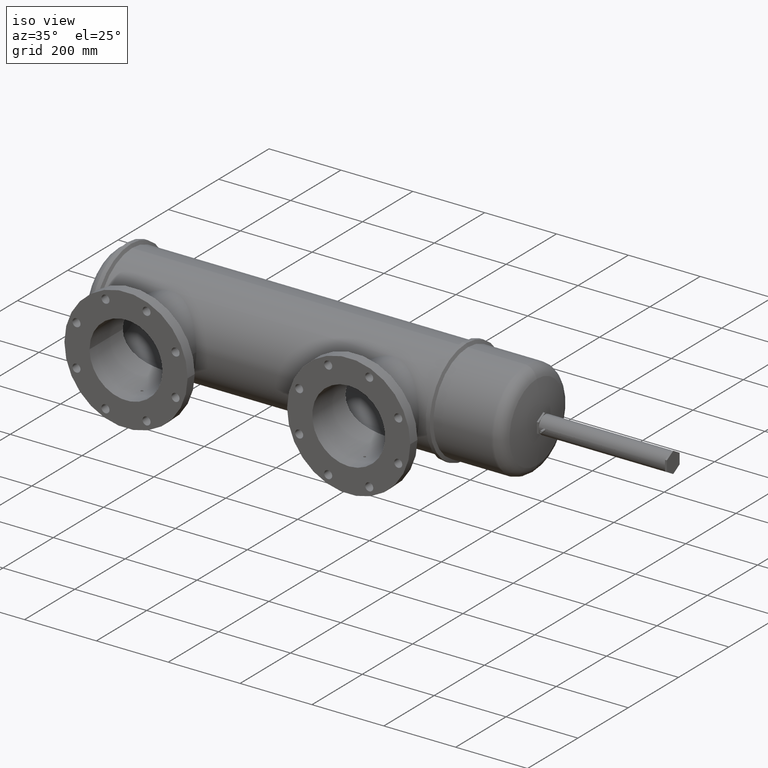
[diagram: clean part render]
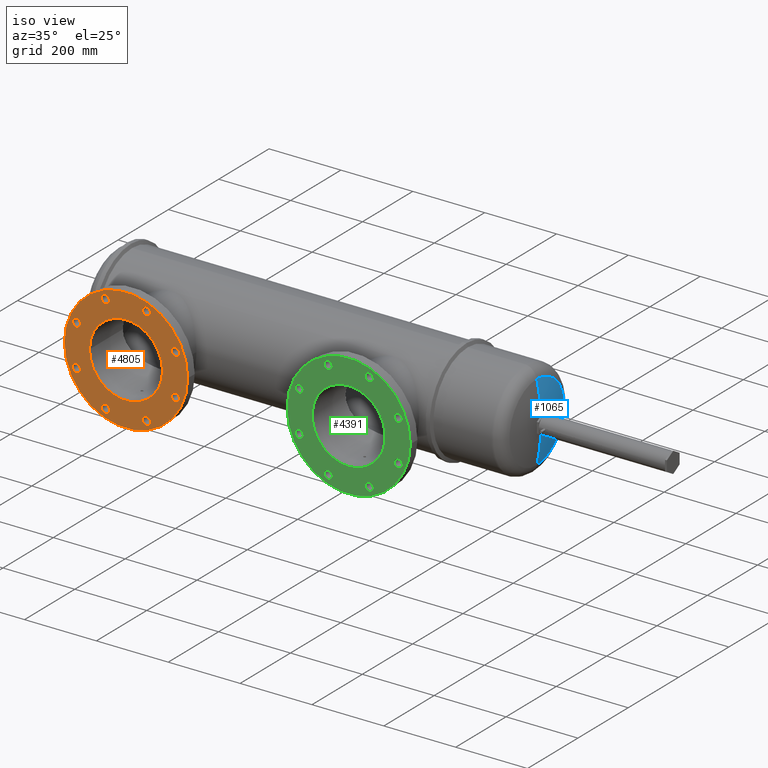
[diagram: same view with three faces highlighted in distinct colors, each labeled with its STEP entity id]
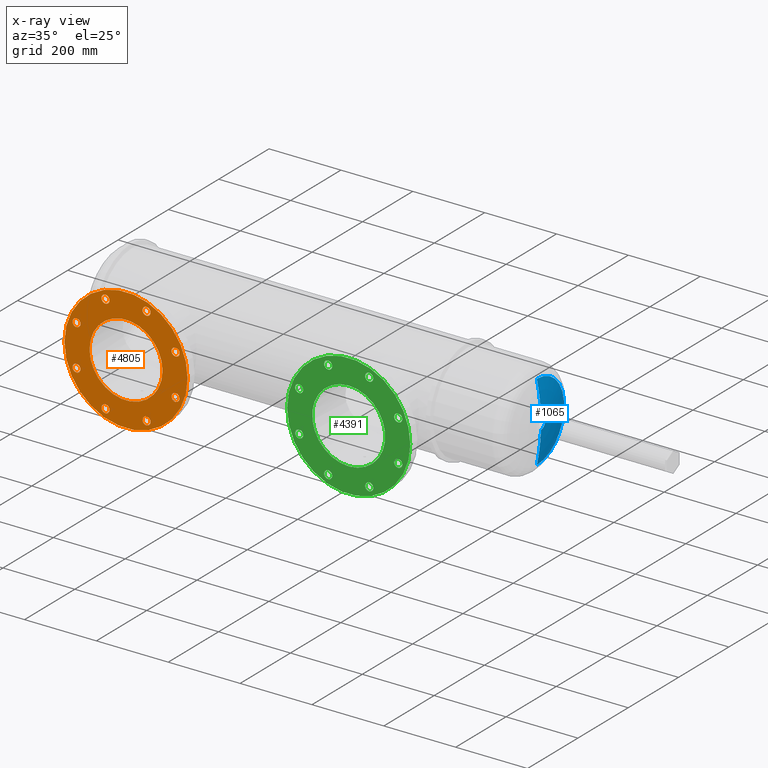
[diagram: x-ray of the same camera — body ghosted, the three highlighted faces saturated]
A machine part, iso view with three faces highlighted in distinct colors.
The next image is the same camera in x-ray (body ghosted, the three faces saturated) — at least one of them is partly hidden behind the body in this view.
Their STEP definitions:

[orange] entity #4805 — the highlighted planar face has unit normal (-0, 1, 0).
#26 = CARTESIAN_POINT ( 'NONE',  ( 14.35933425157177700, -10.38000000000000100, -2.248265165144798700 ) ) ;
#27 = EDGE_CURVE ( 'NONE', #4253, #6706, #7065, .T. ) ;
#29 = DIRECTION ( 'NONE',  ( 1.000000000000000000, 0.0000000000000000000, 0.0000000000000000000 ) ) ;
#50 = ORIENTED_EDGE ( 'NONE', *, *, #7110, .F. ) ;
#122 = EDGE_LOOP ( 'NONE', ( #745, #50 ) ) ;
#171 = CARTESIAN_POINT ( 'NONE',  ( 8.931541998067741500, -10.38000000000000300, 0.0000000000000000000 ) ) ;
#203 = ORIENTED_EDGE ( 'NONE', *, *, #938, .F. ) ;
#219 = CARTESIAN_POINT ( 'NONE',  ( 11.61980716321296500, -10.38000000000000100, -5.427792253503806600 ) ) ;
#318 = ORIENTED_EDGE ( 'NONE', *, *, #6193, .F. ) ;
#328 = CARTESIAN_POINT ( 'NONE',  ( 8.931541998067741500, -10.38000000000000300, 0.0000000000000000000 ) ) ;
#420 = EDGE_CURVE ( 'NONE', #6336, #6550, #3578, .T. ) ;
#431 = FACE_BOUND ( 'NONE', #7106, .T. ) ;
#464 = CARTESIAN_POINT ( 'NONE',  ( 11.61980716321261300, -10.38000000000000100, 5.427792253503824300 ) ) ;
#465 = CARTESIAN_POINT ( 'NONE',  ( 11.17980716321296300, -10.38000000000000100, -5.427792253503806600 ) ) ;
#474 = DIRECTION ( 'NONE',  ( 1.000000000000000000, 0.0000000000000000000, 0.0000000000000000000 ) ) ;
#573 = VERTEX_POINT ( 'NONE', #6069 ) ;
#626 = DIRECTION ( 'NONE',  ( 1.052735257674089800E-016, -1.000000000000000000, 0.0000000000000000000 ) ) ;
#654 = VERTEX_POINT ( 'NONE', #5763 ) ;
#718 = AXIS2_PLACEMENT_3D ( 'NONE', #4379, #3244, #2702 ) ;
#732 = EDGE_LOOP ( 'NONE', ( #4158, #4934 ) ) ;
#745 = ORIENTED_EDGE ( 'NONE', *, *, #4699, .F. ) ;
#784 = CIRCLE ( 'NONE', #718, 0.4400000000000007800 ) ;
#812 = CARTESIAN_POINT ( 'NONE',  ( 6.683276832923146700, -10.38000000000000300, -5.427792253503934500 ) ) ;
#814 = AXIS2_PLACEMENT_3D ( 'NONE', #6477, #5254, #5909 ) ;
#926 = ORIENTED_EDGE ( 'NONE', *, *, #6830, .F. ) ;
#933 = DIRECTION ( 'NONE',  ( 1.052735257674089800E-016, -1.000000000000000000, 0.0000000000000000000 ) ) ;
#938 = EDGE_CURVE ( 'NONE', #573, #6944, #1732, .T. ) ;
#955 = CARTESIAN_POINT ( 'NONE',  ( 6.683276832922873100, -10.38000000000000300, 5.427792253503696400 ) ) ;
#961 = DIRECTION ( 'NONE',  ( 1.000000000000000000, 0.0000000000000000000, 0.0000000000000000000 ) ) ;
#1004 = EDGE_CURVE ( 'NONE', #3675, #1775, #5416, .T. ) ;
#1190 = DIRECTION ( 'NONE',  ( 1.052735257674089800E-016, -1.000000000000000000, 0.0000000000000000000 ) ) ;
#1302 = CIRCLE ( 'NONE', #4673, 0.4400000000000007800 ) ;
#1303 = FACE_BOUND ( 'NONE', #5192, .T. ) ;
#1308 = EDGE_CURVE ( 'NONE', #6593, #3900, #6723, .T. ) ;
#1387 = CIRCLE ( 'NONE', #6325, 0.4400000000000029400 ) ;
#1415 = DIRECTION ( 'NONE',  ( 1.052735257674089800E-016, -1.000000000000000000, 0.0000000000000000000 ) ) ;
#1422 = AXIS2_PLACEMENT_3D ( 'NONE', #955, #2178, #3858 ) ;
#1536 = EDGE_LOOP ( 'NONE', ( #5371, #2394 ) ) ;
#1561 = FACE_BOUND ( 'NONE', #1536, .T. ) ;
#1611 = CARTESIAN_POINT ( 'NONE',  ( 11.17980716321261200, -10.38000000000000100, 5.427792253503824300 ) ) ;
#1644 = PLANE ( 'NONE',  #6978 ) ;
#1649 = AXIS2_PLACEMENT_3D ( 'NONE', #812, #4169, #4705 ) ;
#1654 = ORIENTED_EDGE ( 'NONE', *, *, #27, .T. ) ;
#1657 = DIRECTION ( 'NONE',  ( 1.000000000000000000, 0.0000000000000000000, 0.0000000000000000000 ) ) ;
#1686 = CARTESIAN_POINT ( 'NONE',  ( 14.79933425157163500, -10.38000000000000100, 2.248265165145017200 ) ) ;
#1692 = EDGE_LOOP ( 'NONE', ( #1654, #5687 ) ) ;
#1700 = VERTEX_POINT ( 'NONE', #5880 ) ;
#1701 = EDGE_LOOP ( 'NONE', ( #4978, #2014 ) ) ;
#1732 = CIRCLE ( 'NONE', #1882, 0.4400000000000023900 ) ;
#1743 = EDGE_CURVE ( 'NONE', #1775, #3675, #1302, .T. ) ;
#1775 = VERTEX_POINT ( 'NONE', #464 ) ;
#1823 = VERTEX_POINT ( 'NONE', #5443 ) ;
#1882 = AXIS2_PLACEMENT_3D ( 'NONE', #7076, #4912, #6011 ) ;
#1933 = EDGE_CURVE ( 'NONE', #1823, #1700, #2761, .T. ) ;
#1951 = ORIENTED_EDGE ( 'NONE', *, *, #4275, .F. ) ;
#2014 = ORIENTED_EDGE ( 'NONE', *, *, #1004, .F. ) ;
#2102 = CARTESIAN_POINT ( 'NONE',  ( 11.17980716321261200, -10.38000000000000100, 5.427792253503824300 ) ) ;
#2178 = DIRECTION ( 'NONE',  ( 1.052735257674089800E-016, -1.000000000000000000, 0.0000000000000000000 ) ) ;
#2197 = DIRECTION ( 'NONE',  ( 1.000000000000000000, 0.0000000000000000000, 0.0000000000000000000 ) ) ;
#2243 = DIRECTION ( 'NONE',  ( 1.052735257674089800E-016, -1.000000000000000000, 0.0000000000000000000 ) ) ;
#2250 = AXIS2_PLACEMENT_3D ( 'NONE', #2502, #6421, #5908 ) ;
#2286 = CARTESIAN_POINT ( 'NONE',  ( 6.683276832923146700, -10.38000000000000300, -5.427792253503934500 ) ) ;
#2332 = ORIENTED_EDGE ( 'NONE', *, *, #3084, .T. ) ;
#2340 = AXIS2_PLACEMENT_3D ( 'NONE', #1611, #3346, #6168 ) ;
#2381 = VERTEX_POINT ( 'NONE', #5229 ) ;
#2394 = ORIENTED_EDGE ( 'NONE', *, *, #2614, .F. ) ;
#2442 = CARTESIAN_POINT ( 'NONE',  ( 15.68154199806774300, -10.38000000000000300, 0.0000000000000000000 ) ) ;
#2474 = ORIENTED_EDGE ( 'NONE', *, *, #3983, .F. ) ;
#2502 = CARTESIAN_POINT ( 'NONE',  ( 14.35933425157163300, -10.38000000000000100, 2.248265165145017200 ) ) ;
#2551 = DIRECTION ( 'NONE',  ( -1.000000000000000000, 0.0000000000000000000, 0.0000000000000000000 ) ) ;
#2614 = EDGE_CURVE ( 'NONE', #4487, #3977, #5830, .T. ) ;
#2652 = AXIS2_PLACEMENT_3D ( 'NONE', #4751, #1415, #5320 ) ;
#2702 = DIRECTION ( 'NONE',  ( 1.000000000000000000, 0.0000000000000000000, 0.0000000000000000000 ) ) ;
#2761 = CIRCLE ( 'NONE', #4399, 0.4400000000000018900 ) ;
#2849 = EDGE_CURVE ( 'NONE', #6944, #573, #3457, .T. ) ;
#2874 = DIRECTION ( 'NONE',  ( 1.052735257674089800E-016, -1.000000000000000000, 0.0000000000000000000 ) ) ;
#2940 = FACE_BOUND ( 'NONE', #4854, .T. ) ;
#2976 = CARTESIAN_POINT ( 'NONE',  ( 10.73980716321261000, -10.38000000000000100, 5.427792253503824300 ) ) ;
#2982 = CARTESIAN_POINT ( 'NONE',  ( 3.063749744564030000, -10.38000000000000300, 2.248265165144706800 ) ) ;
#3010 = VERTEX_POINT ( 'NONE', #6460 ) ;
#3068 = CARTESIAN_POINT ( 'NONE',  ( 3.503749744564143700, -10.38000000000000300, -2.248265165145106900 ) ) ;
#3084 = EDGE_CURVE ( 'NONE', #3010, #6469, #7122, .T. ) ;
#3151 = ORIENTED_EDGE ( 'NONE', *, *, #2849, .F. ) ;
#3224 = EDGE_LOOP ( 'NONE', ( #2332, #3626 ) ) ;
#3244 = DIRECTION ( 'NONE',  ( 1.052735257674089800E-016, -1.000000000000000000, 0.0000000000000000000 ) ) ;
#3321 = VERTEX_POINT ( 'NONE', #5302 ) ;
#3333 = VERTEX_POINT ( 'NONE', #4709 ) ;
#3346 = DIRECTION ( 'NONE',  ( 1.052735257674089800E-016, -1.000000000000000000, 0.0000000000000000000 ) ) ;
#3390 = DIRECTION ( 'NONE',  ( 1.000000000000000000, 0.0000000000000000000, 0.0000000000000000000 ) ) ;
#3457 = CIRCLE ( 'NONE', #5197, 0.4400000000000023900 ) ;
#3567 = AXIS2_PLACEMENT_3D ( 'NONE', #7149, #3843, #474 ) ;
#3569 = FACE_OUTER_BOUND ( 'NONE', #1692, .T. ) ;
#3578 = CIRCLE ( 'NONE', #2250, 0.4400000000000007800 ) ;
#3626 = ORIENTED_EDGE ( 'NONE', *, *, #4423, .T. ) ;
#3656 = CARTESIAN_POINT ( 'NONE',  ( 3.063749744564144200, -10.38000000000000300, -2.248265165145106900 ) ) ;
#3675 = VERTEX_POINT ( 'NONE', #2976 ) ;
#3821 = EDGE_CURVE ( 'NONE', #6706, #4253, #5846, .T. ) ;
#3843 = DIRECTION ( 'NONE',  ( 1.052735257674089800E-016, -1.000000000000000000, 0.0000000000000000000 ) ) ;
#3858 = DIRECTION ( 'NONE',  ( 1.000000000000000000, 0.0000000000000000000, 0.0000000000000000000 ) ) ;
#3900 = VERTEX_POINT ( 'NONE', #4813 ) ;
#3932 = CARTESIAN_POINT ( 'NONE',  ( 12.93154199806774200, -10.38000000000000300, 4.898587196589414800E-016 ) ) ;
#3946 = EDGE_CURVE ( 'NONE', #6550, #6336, #4365, .T. ) ;
#3955 = DIRECTION ( 'NONE',  ( -1.000000000000000000, -1.052735257674089700E-016, 0.0000000000000000000 ) ) ;
#3977 = VERTEX_POINT ( 'NONE', #4858 ) ;
#3983 = EDGE_CURVE ( 'NONE', #1700, #1823, #6199, .T. ) ;
#4064 = CIRCLE ( 'NONE', #6644, 0.4400000000000007800 ) ;
#4107 = DIRECTION ( 'NONE',  ( 1.052735257674089800E-016, -1.000000000000000000, 0.0000000000000000000 ) ) ;
#4156 = EDGE_LOOP ( 'NONE', ( #2474, #5538 ) ) ;
#4158 = ORIENTED_EDGE ( 'NONE', *, *, #3946, .F. ) ;
#4169 = DIRECTION ( 'NONE',  ( 1.052735257674089800E-016, -1.000000000000000000, 0.0000000000000000000 ) ) ;
#4171 = AXIS2_PLACEMENT_3D ( 'NONE', #171, #4107, #5312 ) ;
#4253 = VERTEX_POINT ( 'NONE', #2442 ) ;
#4275 = EDGE_CURVE ( 'NONE', #2381, #654, #4454, .T. ) ;
#4365 = CIRCLE ( 'NONE', #4920, 0.4400000000000007800 ) ;
#4379 = CARTESIAN_POINT ( 'NONE',  ( 14.35933425157177700, -10.38000000000000100, -2.248265165144798700 ) ) ;
#4399 = AXIS2_PLACEMENT_3D ( 'NONE', #5094, #1190, #29 ) ;
#4412 = DIRECTION ( 'NONE',  ( 1.052735257674089800E-016, -1.000000000000000000, 0.0000000000000000000 ) ) ;
#4423 = EDGE_CURVE ( 'NONE', #6469, #3010, #7143, .T. ) ;
#4445 = FACE_BOUND ( 'NONE', #3224, .T. ) ;
#4454 = CIRCLE ( 'NONE', #1649, 0.4400000000000029400 ) ;
#4477 = DIRECTION ( 'NONE',  ( 1.000000000000000000, 0.0000000000000000000, 0.0000000000000000000 ) ) ;
#4487 = VERTEX_POINT ( 'NONE', #3656 ) ;
#4591 = DIRECTION ( 'NONE',  ( 1.052735257674089800E-016, -1.000000000000000000, 0.0000000000000000000 ) ) ;
#4673 = AXIS2_PLACEMENT_3D ( 'NONE', #2102, #4412, #4955 ) ;
#4699 = EDGE_CURVE ( 'NONE', #3333, #3321, #784, .T. ) ;
#4705 = DIRECTION ( 'NONE',  ( 1.000000000000000000, 0.0000000000000000000, 0.0000000000000000000 ) ) ;
#4709 = CARTESIAN_POINT ( 'NONE',  ( 14.79933425157177900, -10.38000000000000100, -2.248265165144798700 ) ) ;
#4751 = CARTESIAN_POINT ( 'NONE',  ( 11.17980716321296300, -10.38000000000000100, -5.427792253503806600 ) ) ;
#4796 = DIRECTION ( 'NONE',  ( -1.052735257674089800E-016, 1.000000000000000000, -0.0000000000000000000 ) ) ;
#4805 = ADVANCED_FACE ( 'NONE', ( #4445, #6886, #431, #1561, #2940, #1303, #5743, #6715, #5145, #3569 ), #1644, .F. ) ;
#4813 = CARTESIAN_POINT ( 'NONE',  ( 10.73980716321296200, -10.38000000000000100, -5.427792253503806600 ) ) ;
#4854 = EDGE_LOOP ( 'NONE', ( #1951, #318 ) ) ;
#4858 = CARTESIAN_POINT ( 'NONE',  ( 3.943749744564143600, -10.38000000000000300, -2.248265165145106900 ) ) ;
#4912 = DIRECTION ( 'NONE',  ( 1.052735257674089800E-016, -1.000000000000000000, 0.0000000000000000000 ) ) ;
#4920 = AXIS2_PLACEMENT_3D ( 'NONE', #7039, #933, #2197 ) ;
#4934 = ORIENTED_EDGE ( 'NONE', *, *, #420, .F. ) ;
#4955 = DIRECTION ( 'NONE',  ( 1.000000000000000000, 0.0000000000000000000, 0.0000000000000000000 ) ) ;
#4978 = ORIENTED_EDGE ( 'NONE', *, *, #1743, .F. ) ;
#5094 = CARTESIAN_POINT ( 'NONE',  ( 6.683276832922873100, -10.38000000000000300, 5.427792253503696400 ) ) ;
#5145 = FACE_BOUND ( 'NONE', #1701, .T. ) ;
#5192 = EDGE_LOOP ( 'NONE', ( #7102, #926 ) ) ;
#5197 = AXIS2_PLACEMENT_3D ( 'NONE', #5767, #4591, #6280 ) ;
#5212 = CIRCLE ( 'NONE', #5989, 0.4400000000000007800 ) ;
#5229 = CARTESIAN_POINT ( 'NONE',  ( 7.123276832923149700, -10.38000000000000300, -5.427792253503934500 ) ) ;
#5254 = DIRECTION ( 'NONE',  ( -1.052735257674089800E-016, 1.000000000000000000, -0.0000000000000000000 ) ) ;
#5302 = CARTESIAN_POINT ( 'NONE',  ( 13.91933425157177800, -10.38000000000000100, -2.248265165144798700 ) ) ;
#5312 = DIRECTION ( 'NONE',  ( 1.000000000000000000, 0.0000000000000000000, 0.0000000000000000000 ) ) ;
#5320 = DIRECTION ( 'NONE',  ( 1.000000000000000000, 0.0000000000000000000, 0.0000000000000000000 ) ) ;
#5333 = DIRECTION ( 'NONE',  ( 1.052735257674089800E-016, -1.000000000000000000, 0.0000000000000000000 ) ) ;
#5343 = AXIS2_PLACEMENT_3D ( 'NONE', #328, #4796, #2551 ) ;
#5371 = ORIENTED_EDGE ( 'NONE', *, *, #6148, .F. ) ;
#5376 = CARTESIAN_POINT ( 'NONE',  ( 2.181541998067740600, -10.38000000000000300, 8.266365894244635300E-016 ) ) ;
#5416 = CIRCLE ( 'NONE', #2340, 0.4400000000000007800 ) ;
#5443 = CARTESIAN_POINT ( 'NONE',  ( 6.243276832922871800, -10.38000000000000300, 5.427792253503696400 ) ) ;
#5538 = ORIENTED_EDGE ( 'NONE', *, *, #1933, .F. ) ;
#5687 = ORIENTED_EDGE ( 'NONE', *, *, #3821, .T. ) ;
#5743 = FACE_BOUND ( 'NONE', #122, .T. ) ;
#5763 = CARTESIAN_POINT ( 'NONE',  ( 6.243276832923143600, -10.38000000000000300, -5.427792253503934500 ) ) ;
#5767 = CARTESIAN_POINT ( 'NONE',  ( 3.503749744564032200, -10.38000000000000300, 2.248265165144706800 ) ) ;
#5830 = CIRCLE ( 'NONE', #5843, 0.4399999999999996700 ) ;
#5843 = AXIS2_PLACEMENT_3D ( 'NONE', #3068, #5333, #5934 ) ;
#5846 = CIRCLE ( 'NONE', #4171, 6.750000000000000900 ) ;
#5880 = CARTESIAN_POINT ( 'NONE',  ( 7.123276832922875300, -10.38000000000000300, 5.427792253503696400 ) ) ;
#5908 = DIRECTION ( 'NONE',  ( 1.000000000000000000, 0.0000000000000000000, 0.0000000000000000000 ) ) ;
#5909 = DIRECTION ( 'NONE',  ( -1.000000000000000000, 0.0000000000000000000, 0.0000000000000000000 ) ) ;
#5934 = DIRECTION ( 'NONE',  ( 1.000000000000000000, 0.0000000000000000000, 0.0000000000000000000 ) ) ;
#5947 = CARTESIAN_POINT ( 'NONE',  ( 13.91933425157163200, -10.38000000000000100, 2.248265165145017200 ) ) ;
#5989 = AXIS2_PLACEMENT_3D ( 'NONE', #465, #6609, #961 ) ;
#6011 = DIRECTION ( 'NONE',  ( 1.000000000000000000, 0.0000000000000000000, 0.0000000000000000000 ) ) ;
#6045 = AXIS2_PLACEMENT_3D ( 'NONE', #6769, #2243, #3390 ) ;
#6069 = CARTESIAN_POINT ( 'NONE',  ( 3.943749744564034800, -10.38000000000000300, 2.248265165144706800 ) ) ;
#6148 = EDGE_CURVE ( 'NONE', #3977, #4487, #6790, .T. ) ;
#6168 = DIRECTION ( 'NONE',  ( 1.000000000000000000, 0.0000000000000000000, 0.0000000000000000000 ) ) ;
#6176 = DIRECTION ( 'NONE',  ( -1.052735257674089700E-016, 1.000000000000000000, 0.0000000000000000000 ) ) ;
#6193 = EDGE_CURVE ( 'NONE', #654, #2381, #1387, .T. ) ;
#6199 = CIRCLE ( 'NONE', #1422, 0.4400000000000018900 ) ;
#6280 = DIRECTION ( 'NONE',  ( 1.000000000000000000, 0.0000000000000000000, 0.0000000000000000000 ) ) ;
#6325 = AXIS2_PLACEMENT_3D ( 'NONE', #2286, #2874, #4477 ) ;
#6336 = VERTEX_POINT ( 'NONE', #5947 ) ;
#6421 = DIRECTION ( 'NONE',  ( 1.052735257674089800E-016, -1.000000000000000000, 0.0000000000000000000 ) ) ;
#6460 = CARTESIAN_POINT ( 'NONE',  ( 4.931541998067741500, -10.38000000000000300, 0.0000000000000000000 ) ) ;
#6469 = VERTEX_POINT ( 'NONE', #3932 ) ;
#6477 = CARTESIAN_POINT ( 'NONE',  ( 8.931541998067741500, -10.38000000000000300, 0.0000000000000000000 ) ) ;
#6550 = VERTEX_POINT ( 'NONE', #1686 ) ;
#6593 = VERTEX_POINT ( 'NONE', #219 ) ;
#6609 = DIRECTION ( 'NONE',  ( 1.052735257674089800E-016, -1.000000000000000000, 0.0000000000000000000 ) ) ;
#6644 = AXIS2_PLACEMENT_3D ( 'NONE', #26, #626, #1657 ) ;
#6706 = VERTEX_POINT ( 'NONE', #5376 ) ;
#6715 = FACE_BOUND ( 'NONE', #732, .T. ) ;
#6723 = CIRCLE ( 'NONE', #2652, 0.4400000000000007800 ) ;
#6769 = CARTESIAN_POINT ( 'NONE',  ( 3.503749744564143700, -10.38000000000000300, -2.248265165145106900 ) ) ;
#6790 = CIRCLE ( 'NONE', #6045, 0.4399999999999996700 ) ;
#6830 = EDGE_CURVE ( 'NONE', #3900, #6593, #5212, .T. ) ;
#6886 = FACE_BOUND ( 'NONE', #4156, .T. ) ;
#6944 = VERTEX_POINT ( 'NONE', #2982 ) ;
#6978 = AXIS2_PLACEMENT_3D ( 'NONE', #7239, #6176, #3955 ) ;
#7039 = CARTESIAN_POINT ( 'NONE',  ( 14.35933425157163300, -10.38000000000000100, 2.248265165145017200 ) ) ;
#7065 = CIRCLE ( 'NONE', #3567, 6.750000000000000900 ) ;
#7076 = CARTESIAN_POINT ( 'NONE',  ( 3.503749744564032200, -10.38000000000000300, 2.248265165144706800 ) ) ;
#7102 = ORIENTED_EDGE ( 'NONE', *, *, #1308, .F. ) ;
#7106 = EDGE_LOOP ( 'NONE', ( #203, #3151 ) ) ;
#7110 = EDGE_CURVE ( 'NONE', #3321, #3333, #4064, .T. ) ;
#7122 = CIRCLE ( 'NONE', #5343, 4.000000000000000000 ) ;
#7143 = CIRCLE ( 'NONE', #814, 4.000000000000000000 ) ;
#7149 = CARTESIAN_POINT ( 'NONE',  ( 8.931541998067741500, -10.38000000000000300, 0.0000000000000000000 ) ) ;
#7239 = CARTESIAN_POINT ( 'NONE',  ( 1.222397793965202700E-031, -10.38000000000000300, 0.0000000000000000000 ) ) ;

[blue] entity #1065 — the highlighted toroidal blend (fillet) surface has major radius 0.0031 mm and minor (blend) radius 508 mm.
#512 = CIRCLE ( 'NONE', #1182, 4.275493248467186400 ) ;
#522 = DIRECTION ( 'NONE',  ( -0.0000000000000000000, 1.000000000000000000, 1.224646799147353200E-016 ) ) ;
#613 = CARTESIAN_POINT ( 'NONE',  ( 27.14060068722228200, -1.517830707259313900E-020, 0.0001239402828894083300 ) ) ;
#856 = ORIENTED_EDGE ( 'NONE', *, *, #889, .T. ) ;
#889 = EDGE_CURVE ( 'NONE', #5037, #2620, #6553, .T. ) ;
#1065 = ADVANCED_FACE ( 'NONE', ( #3922 ), #2249, .T. ) ;
#1182 = AXIS2_PLACEMENT_3D ( 'NONE', #1274, #1326, #1351 ) ;
#1274 = CARTESIAN_POINT ( 'NONE',  ( 46.67823722269480400, 0.0000000000000000000, 0.0000000000000000000 ) ) ;
#1283 = CARTESIAN_POINT ( 'NONE',  ( 27.14060068722228200, 0.0000000000000000000, -0.0001239402828894083300 ) ) ;
#1326 = DIRECTION ( 'NONE',  ( -1.000000000000000000, -0.0000000000000000000, -0.0000000000000000000 ) ) ;
#1351 = DIRECTION ( 'NONE',  ( 0.0000000000000000000, 0.0000000000000000000, 1.000000000000000000 ) ) ;
#1507 = ORIENTED_EDGE ( 'NONE', *, *, #2428, .F. ) ;
#1980 = AXIS2_PLACEMENT_3D ( 'NONE', #6027, #3188, #3741 ) ;
#2249 = TOROIDAL_SURFACE ( 'NONE', #4599, -0.0001239402828894083300, 20.00000359342382700 ) ;
#2403 = DIRECTION ( 'NONE',  ( 0.0000000000000000000, -1.000000000000000000, 0.0000000000000000000 ) ) ;
#2428 = EDGE_CURVE ( 'NONE', #7194, #6324, #512, .T. ) ;
#2506 = CARTESIAN_POINT ( 'NONE',  ( 47.12954200486083100, 3.025169900131166700E-016, -0.6649841238452376400 ) ) ;
#2561 = AXIS2_PLACEMENT_3D ( 'NONE', #1283, #2403, #2970 ) ;
#2620 = VERTEX_POINT ( 'NONE', #2506 ) ;
#2717 = CARTESIAN_POINT ( 'NONE',  ( 27.14060068722228200, 0.0000000000000000000, 0.0000000000000000000 ) ) ;
#2742 = DIRECTION ( 'NONE',  ( -1.000000000000000000, -0.0000000000000000000, -0.0000000000000000000 ) ) ;
#2743 = DIRECTION ( 'NONE',  ( 0.0000000000000000000, -1.224646799147353000E-016, 1.000000000000000000 ) ) ;
#2851 = EDGE_CURVE ( 'NONE', #5037, #7194, #3026, .T. ) ;
#2930 = CIRCLE ( 'NONE', #3276, 20.00000359342382700 ) ;
#2970 = DIRECTION ( 'NONE',  ( 0.0000000000000000000, 0.0000000000000000000, -1.000000000000000000 ) ) ;
#3026 = CIRCLE ( 'NONE', #2561, 20.00000359342382700 ) ;
#3188 = DIRECTION ( 'NONE',  ( -1.000000000000000000, -0.0000000000000000000, -0.0000000000000000000 ) ) ;
#3276 = AXIS2_PLACEMENT_3D ( 'NONE', #613, #522, #2743 ) ;
#3736 = CARTESIAN_POINT ( 'NONE',  ( 46.67823722269480400, 0.0000000000000000000, 4.275493248467197000 ) ) ;
#3741 = DIRECTION ( 'NONE',  ( 0.0000000000000000000, 0.0000000000000000000, 1.000000000000000000 ) ) ;
#3922 = FACE_OUTER_BOUND ( 'NONE', #5275, .T. ) ;
#4599 = AXIS2_PLACEMENT_3D ( 'NONE', #2717, #2742, #6143 ) ;
#4802 = ORIENTED_EDGE ( 'NONE', *, *, #2851, .F. ) ;
#4908 = CARTESIAN_POINT ( 'NONE',  ( 47.12954200486083100, 0.0000000000000000000, 0.6649841238452376400 ) ) ;
#5037 = VERTEX_POINT ( 'NONE', #4908 ) ;
#5115 = ORIENTED_EDGE ( 'NONE', *, *, #5504, .T. ) ;
#5275 = EDGE_LOOP ( 'NONE', ( #856, #5115, #1507, #4802 ) ) ;
#5472 = CARTESIAN_POINT ( 'NONE',  ( 46.67823722269480400, 5.235969121511473000E-016, -4.275493248467197000 ) ) ;
#5504 = EDGE_CURVE ( 'NONE', #2620, #6324, #2930, .T. ) ;
#6027 = CARTESIAN_POINT ( 'NONE',  ( 47.12954200486083100, 0.0000000000000000000, 0.0000000000000000000 ) ) ;
#6143 = DIRECTION ( 'NONE',  ( 0.0000000000000000000, 0.0000000000000000000, 1.000000000000000000 ) ) ;
#6324 = VERTEX_POINT ( 'NONE', #5472 ) ;
#6553 = CIRCLE ( 'NONE', #1980, 0.6649841238452376400 ) ;
#7194 = VERTEX_POINT ( 'NONE', #3736 ) ;

[green] entity #4391 — the highlighted planar face has unit normal (-0, 1, 0).
#22 = VERTEX_POINT ( 'NONE', #1575 ) ;
#55 = DIRECTION ( 'NONE',  ( 1.000000000000000000, 0.0000000000000000000, 0.0000000000000000000 ) ) ;
#98 = AXIS2_PLACEMENT_3D ( 'NONE', #2163, #6088, #2721 ) ;
#116 = ORIENTED_EDGE ( 'NONE', *, *, #5693, .F. ) ;
#145 = DIRECTION ( 'NONE',  ( 1.052735257674089800E-016, -1.000000000000000000, 0.0000000000000000000 ) ) ;
#198 = AXIS2_PLACEMENT_3D ( 'NONE', #1132, #502, #549 ) ;
#216 = VERTEX_POINT ( 'NONE', #4042 ) ;
#244 = CARTESIAN_POINT ( 'NONE',  ( 38.75933425157163000, -10.37999999999999700, 2.248265165145017200 ) ) ;
#260 = FACE_BOUND ( 'NONE', #1172, .T. ) ;
#291 = DIRECTION ( 'NONE',  ( 1.000000000000000000, 0.0000000000000000000, 0.0000000000000000000 ) ) ;
#329 = EDGE_LOOP ( 'NONE', ( #1040, #4053 ) ) ;
#372 = CARTESIAN_POINT ( 'NONE',  ( 26.58154199806774200, -10.37999999999999700, 8.266365894244638300E-016 ) ) ;
#391 = ORIENTED_EDGE ( 'NONE', *, *, #6224, .F. ) ;
#434 = AXIS2_PLACEMENT_3D ( 'NONE', #2529, #1374, #6450 ) ;
#458 = ORIENTED_EDGE ( 'NONE', *, *, #634, .T. ) ;
#463 = CARTESIAN_POINT ( 'NONE',  ( 33.33154199806774200, -10.38000000000000100, 4.000000000000000900 ) ) ;
#488 = VERTEX_POINT ( 'NONE', #4288 ) ;
#502 = DIRECTION ( 'NONE',  ( 1.052735257674089800E-016, -1.000000000000000000, 0.0000000000000000000 ) ) ;
#515 = CARTESIAN_POINT ( 'NONE',  ( 33.33154199806774200, -10.38000000000000100, 0.0000000000000000000 ) ) ;
#533 = AXIS2_PLACEMENT_3D ( 'NONE', #4465, #7208, #1076 ) ;
#549 = DIRECTION ( 'NONE',  ( 1.000000000000000000, 0.0000000000000000000, 0.0000000000000000000 ) ) ;
#601 = CARTESIAN_POINT ( 'NONE',  ( 38.75933425157177200, -10.37999999999999700, -2.248265165144798700 ) ) ;
#621 = AXIS2_PLACEMENT_3D ( 'NONE', #3816, #1597, #5502 ) ;
#627 = EDGE_CURVE ( 'NONE', #4147, #488, #5748, .T. ) ;
#634 = EDGE_CURVE ( 'NONE', #2644, #4582, #1739, .T. ) ;
#661 = CARTESIAN_POINT ( 'NONE',  ( 27.46374974456403000, -10.38000000000000100, 2.248265165144706800 ) ) ;
#710 = DIRECTION ( 'NONE',  ( 1.000000000000000000, 0.0000000000000000000, 0.0000000000000000000 ) ) ;
#757 = DIRECTION ( 'NONE',  ( 1.000000000000000000, 0.0000000000000000000, 0.0000000000000000000 ) ) ;
#810 = VERTEX_POINT ( 'NONE', #1997 ) ;
#825 = AXIS2_PLACEMENT_3D ( 'NONE', #244, #3566, #2425 ) ;
#847 = EDGE_CURVE ( 'NONE', #488, #4147, #2597, .T. ) ;
#892 = VERTEX_POINT ( 'NONE', #5406 ) ;
#893 = PLANE ( 'NONE',  #434 ) ;
#894 = CIRCLE ( 'NONE', #2047, 0.4400000000000029400 ) ;
#1032 = CIRCLE ( 'NONE', #1431, 0.4400000000000029400 ) ;
#1040 = ORIENTED_EDGE ( 'NONE', *, *, #6585, .F. ) ;
#1041 = AXIS2_PLACEMENT_3D ( 'NONE', #3976, #5104, #710 ) ;
#1052 = DIRECTION ( 'NONE',  ( 0.0000000000000000000, 0.0000000000000000000, 1.000000000000000000 ) ) ;
#1062 = CARTESIAN_POINT ( 'NONE',  ( 35.57980716321296200, -10.37999999999999700, -5.427792253503806600 ) ) ;
#1064 = VERTEX_POINT ( 'NONE', #3374 ) ;
#1074 = CARTESIAN_POINT ( 'NONE',  ( 33.33154199806774200, -10.38000000000000100, 0.0000000000000000000 ) ) ;
#1076 = DIRECTION ( 'NONE',  ( 1.000000000000000000, 0.0000000000000000000, 0.0000000000000000000 ) ) ;
#1132 = CARTESIAN_POINT ( 'NONE',  ( 35.57980716321296200, -10.37999999999999700, -5.427792253503806600 ) ) ;
#1137 = FACE_BOUND ( 'NONE', #4401, .T. ) ;
#1146 = ORIENTED_EDGE ( 'NONE', *, *, #3892, .F. ) ;
#1172 = EDGE_LOOP ( 'NONE', ( #4410, #5201 ) ) ;
#1174 = AXIS2_PLACEMENT_3D ( 'NONE', #6999, #5879, #2545 ) ;
#1177 = DIRECTION ( 'NONE',  ( 1.000000000000000000, 0.0000000000000000000, 0.0000000000000000000 ) ) ;
#1214 = FACE_OUTER_BOUND ( 'NONE', #1782, .T. ) ;
#1228 = EDGE_CURVE ( 'NONE', #22, #1064, #5144, .T. ) ;
#1316 = CIRCLE ( 'NONE', #6037, 4.000000000000000900 ) ;
#1367 = EDGE_LOOP ( 'NONE', ( #4762, #116 ) ) ;
#1374 = DIRECTION ( 'NONE',  ( -0.0000000000000000000, 1.000000000000000000, 0.0000000000000000000 ) ) ;
#1391 = AXIS2_PLACEMENT_3D ( 'NONE', #1826, #4129, #2352 ) ;
#1431 = AXIS2_PLACEMENT_3D ( 'NONE', #5367, #1556, #3694 ) ;
#1521 = EDGE_CURVE ( 'NONE', #2560, #810, #1808, .T. ) ;
#1556 = DIRECTION ( 'NONE',  ( 1.052735257674089800E-016, -1.000000000000000000, 0.0000000000000000000 ) ) ;
#1570 = CIRCLE ( 'NONE', #1174, 0.4400000000000029400 ) ;
#1575 = CARTESIAN_POINT ( 'NONE',  ( 38.31933425157163200, -10.37999999999999700, 2.248265165145017200 ) ) ;
#1597 = DIRECTION ( 'NONE',  ( 1.052735257674089800E-016, -1.000000000000000000, 0.0000000000000000000 ) ) ;
#1632 = CARTESIAN_POINT ( 'NONE',  ( 28.34374974456414600, -10.38000000000000100, -2.248265165145106900 ) ) ;
#1715 = CARTESIAN_POINT ( 'NONE',  ( 31.08327683292314700, -10.38000000000000100, -5.427792253503934500 ) ) ;
#1739 = CIRCLE ( 'NONE', #1391, 6.750000000000000000 ) ;
#1782 = EDGE_LOOP ( 'NONE', ( #5872, #458 ) ) ;
#1808 = CIRCLE ( 'NONE', #1041, 0.4400000000000029400 ) ;
#1825 = EDGE_CURVE ( 'NONE', #4574, #3445, #3204, .T. ) ;
#1826 = CARTESIAN_POINT ( 'NONE',  ( 33.33154199806774200, -10.37999999999999700, 0.0000000000000000000 ) ) ;
#1945 = CARTESIAN_POINT ( 'NONE',  ( 31.08327683292287300, -10.38000000000000100, 5.427792253503696400 ) ) ;
#1997 = CARTESIAN_POINT ( 'NONE',  ( 38.31933425157177500, -10.37999999999999700, -2.248265165144798700 ) ) ;
#2047 = AXIS2_PLACEMENT_3D ( 'NONE', #6021, #6571, #7177 ) ;
#2148 = CIRCLE ( 'NONE', #2891, 0.4400000000000029400 ) ;
#2150 = DIRECTION ( 'NONE',  ( 0.0000000000000000000, 0.0000000000000000000, 1.000000000000000000 ) ) ;
#2163 = CARTESIAN_POINT ( 'NONE',  ( 27.90374974456414100, -10.38000000000000100, -2.248265165145106900 ) ) ;
#2206 = ORIENTED_EDGE ( 'NONE', *, *, #5956, .F. ) ;
#2251 = CIRCLE ( 'NONE', #4588, 0.4400000000000029400 ) ;
#2262 = ORIENTED_EDGE ( 'NONE', *, *, #847, .F. ) ;
#2273 = CARTESIAN_POINT ( 'NONE',  ( 36.01980716321261200, -10.37999999999999700, 5.427792253503824300 ) ) ;
#2287 = AXIS2_PLACEMENT_3D ( 'NONE', #1062, #6113, #2720 ) ;
#2295 = ORIENTED_EDGE ( 'NONE', *, *, #4880, .F. ) ;
#2297 = CARTESIAN_POINT ( 'NONE',  ( 31.52327683292315200, -10.38000000000000100, -5.427792253503934500 ) ) ;
#2306 = EDGE_LOOP ( 'NONE', ( #7054, #2206 ) ) ;
#2352 = DIRECTION ( 'NONE',  ( 1.000000000000000000, 0.0000000000000000000, 0.0000000000000000000 ) ) ;
#2425 = DIRECTION ( 'NONE',  ( 1.000000000000000000, 0.0000000000000000000, 0.0000000000000000000 ) ) ;
#2446 = CARTESIAN_POINT ( 'NONE',  ( 38.75933425157163000, -10.37999999999999700, 2.248265165145017200 ) ) ;
#2529 = CARTESIAN_POINT ( 'NONE',  ( -5.405307221205019700E-015, -10.38000000000000100, 0.0000000000000000000 ) ) ;
#2545 = DIRECTION ( 'NONE',  ( 1.000000000000000000, 0.0000000000000000000, 0.0000000000000000000 ) ) ;
#2560 = VERTEX_POINT ( 'NONE', #5307 ) ;
#2568 = ORIENTED_EDGE ( 'NONE', *, *, #4513, .F. ) ;
#2597 = CIRCLE ( 'NONE', #3001, 0.4400000000000029400 ) ;
#2640 = CARTESIAN_POINT ( 'NONE',  ( 36.01980716321296700, -10.37999999999999700, -5.427792253503806600 ) ) ;
#2644 = VERTEX_POINT ( 'NONE', #372 ) ;
#2663 = CIRCLE ( 'NONE', #2287, 0.4400000000000029400 ) ;
#2681 = FACE_BOUND ( 'NONE', #1367, .T. ) ;
#2720 = DIRECTION ( 'NONE',  ( 1.000000000000000000, 0.0000000000000000000, 0.0000000000000000000 ) ) ;
#2721 = DIRECTION ( 'NONE',  ( 1.000000000000000000, 0.0000000000000000000, 0.0000000000000000000 ) ) ;
#2830 = CARTESIAN_POINT ( 'NONE',  ( 27.90374974456403500, -10.38000000000000100, 2.248265165144706800 ) ) ;
#2891 = AXIS2_PLACEMENT_3D ( 'NONE', #2830, #4529, #5096 ) ;
#2951 = FACE_BOUND ( 'NONE', #2306, .T. ) ;
#2968 = CARTESIAN_POINT ( 'NONE',  ( 31.08327683292287300, -10.38000000000000100, 5.427792253503696400 ) ) ;
#3001 = AXIS2_PLACEMENT_3D ( 'NONE', #1945, #6461, #3074 ) ;
#3022 = CARTESIAN_POINT ( 'NONE',  ( 30.64327683292314600, -10.38000000000000100, -5.427792253503934500 ) ) ;
#3044 = FACE_BOUND ( 'NONE', #329, .T. ) ;
#3074 = DIRECTION ( 'NONE',  ( 1.000000000000000000, 0.0000000000000000000, 0.0000000000000000000 ) ) ;
#3085 = CARTESIAN_POINT ( 'NONE',  ( 35.57980716321260700, -10.37999999999999700, 5.427792253503824300 ) ) ;
#3131 = AXIS2_PLACEMENT_3D ( 'NONE', #1074, #7137, #2150 ) ;
#3204 = CIRCLE ( 'NONE', #3131, 4.000000000000000900 ) ;
#3249 = DIRECTION ( 'NONE',  ( -0.0000000000000000000, 1.000000000000000000, -0.0000000000000000000 ) ) ;
#3296 = VERTEX_POINT ( 'NONE', #5250 ) ;
#3374 = CARTESIAN_POINT ( 'NONE',  ( 39.19933425157162800, -10.37999999999999700, 2.248265165145017200 ) ) ;
#3438 = ORIENTED_EDGE ( 'NONE', *, *, #3513, .F. ) ;
#3445 = VERTEX_POINT ( 'NONE', #463 ) ;
#3513 = EDGE_CURVE ( 'NONE', #5718, #5736, #894, .T. ) ;
#3536 = CARTESIAN_POINT ( 'NONE',  ( 33.33154199806774200, -10.38000000000000100, -4.000000000000000900 ) ) ;
#3544 = VERTEX_POINT ( 'NONE', #1632 ) ;
#3554 = AXIS2_PLACEMENT_3D ( 'NONE', #2446, #4095, #757 ) ;
#3566 = DIRECTION ( 'NONE',  ( 1.052735257674089800E-016, -1.000000000000000000, 0.0000000000000000000 ) ) ;
#3591 = EDGE_CURVE ( 'NONE', #3445, #4574, #1316, .T. ) ;
#3610 = AXIS2_PLACEMENT_3D ( 'NONE', #1715, #6152, #1177 ) ;
#3694 = DIRECTION ( 'NONE',  ( 1.000000000000000000, 0.0000000000000000000, 0.0000000000000000000 ) ) ;
#3789 = EDGE_LOOP ( 'NONE', ( #4323, #2262 ) ) ;
#3816 = CARTESIAN_POINT ( 'NONE',  ( 33.33154199806774200, -10.37999999999999700, 0.0000000000000000000 ) ) ;
#3892 = EDGE_CURVE ( 'NONE', #892, #3544, #6808, .T. ) ;
#3938 = DIRECTION ( 'NONE',  ( 1.052735257674089800E-016, -1.000000000000000000, 0.0000000000000000000 ) ) ;
#3976 = CARTESIAN_POINT ( 'NONE',  ( 38.75933425157177200, -10.37999999999999700, -2.248265165144798700 ) ) ;
#3986 = CIRCLE ( 'NONE', #198, 0.4400000000000029400 ) ;
#4042 = CARTESIAN_POINT ( 'NONE',  ( 35.13980716321295700, -10.37999999999999700, -5.427792253503806600 ) ) ;
#4048 = DIRECTION ( 'NONE',  ( 1.000000000000000000, 0.0000000000000000000, 0.0000000000000000000 ) ) ;
#4053 = ORIENTED_EDGE ( 'NONE', *, *, #1228, .F. ) ;
#4095 = DIRECTION ( 'NONE',  ( 1.052735257674089800E-016, -1.000000000000000000, 0.0000000000000000000 ) ) ;
#4103 = CARTESIAN_POINT ( 'NONE',  ( 40.08154199806774200, -10.37999999999999700, 0.0000000000000000000 ) ) ;
#4129 = DIRECTION ( 'NONE',  ( 1.052735257674089800E-016, -1.000000000000000000, 0.0000000000000000000 ) ) ;
#4147 = VERTEX_POINT ( 'NONE', #6235 ) ;
#4288 = CARTESIAN_POINT ( 'NONE',  ( 30.64327683292286900, -10.38000000000000100, 5.427792253503696400 ) ) ;
#4323 = ORIENTED_EDGE ( 'NONE', *, *, #627, .F. ) ;
#4391 = ADVANCED_FACE ( 'NONE', ( #4527, #4894, #2681, #6191, #2951, #260, #1137, #3044, #4713, #1214 ), #893, .F. ) ;
#4401 = EDGE_LOOP ( 'NONE', ( #5296, #391 ) ) ;
#4410 = ORIENTED_EDGE ( 'NONE', *, *, #6535, .F. ) ;
#4434 = EDGE_CURVE ( 'NONE', #3296, #5607, #1570, .T. ) ;
#4465 = CARTESIAN_POINT ( 'NONE',  ( 27.90374974456414100, -10.38000000000000100, -2.248265165145106900 ) ) ;
#4489 = ORIENTED_EDGE ( 'NONE', *, *, #1825, .T. ) ;
#4513 = EDGE_CURVE ( 'NONE', #5736, #5718, #2251, .T. ) ;
#4527 = FACE_BOUND ( 'NONE', #6934, .T. ) ;
#4529 = DIRECTION ( 'NONE',  ( 1.052735257674089800E-016, -1.000000000000000000, 0.0000000000000000000 ) ) ;
#4574 = VERTEX_POINT ( 'NONE', #3536 ) ;
#4582 = VERTEX_POINT ( 'NONE', #4103 ) ;
#4588 = AXIS2_PLACEMENT_3D ( 'NONE', #3085, #6975, #291 ) ;
#4614 = CIRCLE ( 'NONE', #3610, 0.4400000000000029400 ) ;
#4713 = FACE_BOUND ( 'NONE', #5986, .T. ) ;
#4744 = EDGE_CURVE ( 'NONE', #4582, #2644, #5836, .T. ) ;
#4754 = ORIENTED_EDGE ( 'NONE', *, *, #3591, .T. ) ;
#4762 = ORIENTED_EDGE ( 'NONE', *, *, #4434, .F. ) ;
#4843 = EDGE_CURVE ( 'NONE', #5712, #5191, #4614, .T. ) ;
#4880 = EDGE_CURVE ( 'NONE', #3544, #892, #6109, .T. ) ;
#4894 = FACE_BOUND ( 'NONE', #3789, .T. ) ;
#5096 = DIRECTION ( 'NONE',  ( 1.000000000000000000, 0.0000000000000000000, 0.0000000000000000000 ) ) ;
#5104 = DIRECTION ( 'NONE',  ( 1.052735257674089800E-016, -1.000000000000000000, 0.0000000000000000000 ) ) ;
#5109 = EDGE_LOOP ( 'NONE', ( #2295, #1146 ) ) ;
#5144 = CIRCLE ( 'NONE', #3554, 0.4399999999999985600 ) ;
#5191 = VERTEX_POINT ( 'NONE', #3022 ) ;
#5201 = ORIENTED_EDGE ( 'NONE', *, *, #6476, .F. ) ;
#5250 = CARTESIAN_POINT ( 'NONE',  ( 28.34374974456403600, -10.38000000000000100, 2.248265165144706800 ) ) ;
#5296 = ORIENTED_EDGE ( 'NONE', *, *, #1521, .F. ) ;
#5307 = CARTESIAN_POINT ( 'NONE',  ( 39.19933425157177700, -10.37999999999999700, -2.248265165144798700 ) ) ;
#5367 = CARTESIAN_POINT ( 'NONE',  ( 31.08327683292314700, -10.38000000000000100, -5.427792253503934500 ) ) ;
#5406 = CARTESIAN_POINT ( 'NONE',  ( 27.46374974456414000, -10.38000000000000100, -2.248265165145106900 ) ) ;
#5502 = DIRECTION ( 'NONE',  ( 1.000000000000000000, 0.0000000000000000000, 0.0000000000000000000 ) ) ;
#5562 = CIRCLE ( 'NONE', #825, 0.4399999999999985600 ) ;
#5607 = VERTEX_POINT ( 'NONE', #661 ) ;
#5693 = EDGE_CURVE ( 'NONE', #5607, #3296, #2148, .T. ) ;
#5712 = VERTEX_POINT ( 'NONE', #2297 ) ;
#5718 = VERTEX_POINT ( 'NONE', #6659 ) ;
#5736 = VERTEX_POINT ( 'NONE', #2273 ) ;
#5748 = CIRCLE ( 'NONE', #6991, 0.4400000000000029400 ) ;
#5836 = CIRCLE ( 'NONE', #621, 6.750000000000000000 ) ;
#5872 = ORIENTED_EDGE ( 'NONE', *, *, #4744, .T. ) ;
#5879 = DIRECTION ( 'NONE',  ( 1.052735257674089800E-016, -1.000000000000000000, 0.0000000000000000000 ) ) ;
#5956 = EDGE_CURVE ( 'NONE', #5191, #5712, #1032, .T. ) ;
#5986 = EDGE_LOOP ( 'NONE', ( #2568, #3438 ) ) ;
#6021 = CARTESIAN_POINT ( 'NONE',  ( 35.57980716321260700, -10.37999999999999700, 5.427792253503824300 ) ) ;
#6037 = AXIS2_PLACEMENT_3D ( 'NONE', #515, #3249, #1052 ) ;
#6088 = DIRECTION ( 'NONE',  ( 1.052735257674089800E-016, -1.000000000000000000, 0.0000000000000000000 ) ) ;
#6109 = CIRCLE ( 'NONE', #98, 0.4400000000000029400 ) ;
#6113 = DIRECTION ( 'NONE',  ( 1.052735257674089800E-016, -1.000000000000000000, 0.0000000000000000000 ) ) ;
#6152 = DIRECTION ( 'NONE',  ( 1.052735257674089800E-016, -1.000000000000000000, 0.0000000000000000000 ) ) ;
#6191 = FACE_BOUND ( 'NONE', #5109, .T. ) ;
#6224 = EDGE_CURVE ( 'NONE', #810, #2560, #6953, .T. ) ;
#6235 = CARTESIAN_POINT ( 'NONE',  ( 31.52327683292287500, -10.38000000000000100, 5.427792253503696400 ) ) ;
#6433 = AXIS2_PLACEMENT_3D ( 'NONE', #601, #3938, #55 ) ;
#6450 = DIRECTION ( 'NONE',  ( 0.0000000000000000000, 0.0000000000000000000, 1.000000000000000000 ) ) ;
#6461 = DIRECTION ( 'NONE',  ( 1.052735257674089800E-016, -1.000000000000000000, 0.0000000000000000000 ) ) ;
#6476 = EDGE_CURVE ( 'NONE', #216, #7015, #2663, .T. ) ;
#6535 = EDGE_CURVE ( 'NONE', #7015, #216, #3986, .T. ) ;
#6571 = DIRECTION ( 'NONE',  ( 1.052735257674089800E-016, -1.000000000000000000, 0.0000000000000000000 ) ) ;
#6585 = EDGE_CURVE ( 'NONE', #1064, #22, #5562, .T. ) ;
#6659 = CARTESIAN_POINT ( 'NONE',  ( 35.13980716321260900, -10.37999999999999700, 5.427792253503824300 ) ) ;
#6808 = CIRCLE ( 'NONE', #533, 0.4400000000000029400 ) ;
#6934 = EDGE_LOOP ( 'NONE', ( #4754, #4489 ) ) ;
#6953 = CIRCLE ( 'NONE', #6433, 0.4400000000000029400 ) ;
#6975 = DIRECTION ( 'NONE',  ( 1.052735257674089800E-016, -1.000000000000000000, 0.0000000000000000000 ) ) ;
#6991 = AXIS2_PLACEMENT_3D ( 'NONE', #2968, #145, #4048 ) ;
#6999 = CARTESIAN_POINT ( 'NONE',  ( 27.90374974456403500, -10.38000000000000100, 2.248265165144706800 ) ) ;
#7015 = VERTEX_POINT ( 'NONE', #2640 ) ;
#7054 = ORIENTED_EDGE ( 'NONE', *, *, #4843, .F. ) ;
#7137 = DIRECTION ( 'NONE',  ( -0.0000000000000000000, 1.000000000000000000, -0.0000000000000000000 ) ) ;
#7177 = DIRECTION ( 'NONE',  ( 1.000000000000000000, 0.0000000000000000000, 0.0000000000000000000 ) ) ;
#7208 = DIRECTION ( 'NONE',  ( 1.052735257674089800E-016, -1.000000000000000000, 0.0000000000000000000 ) ) ;